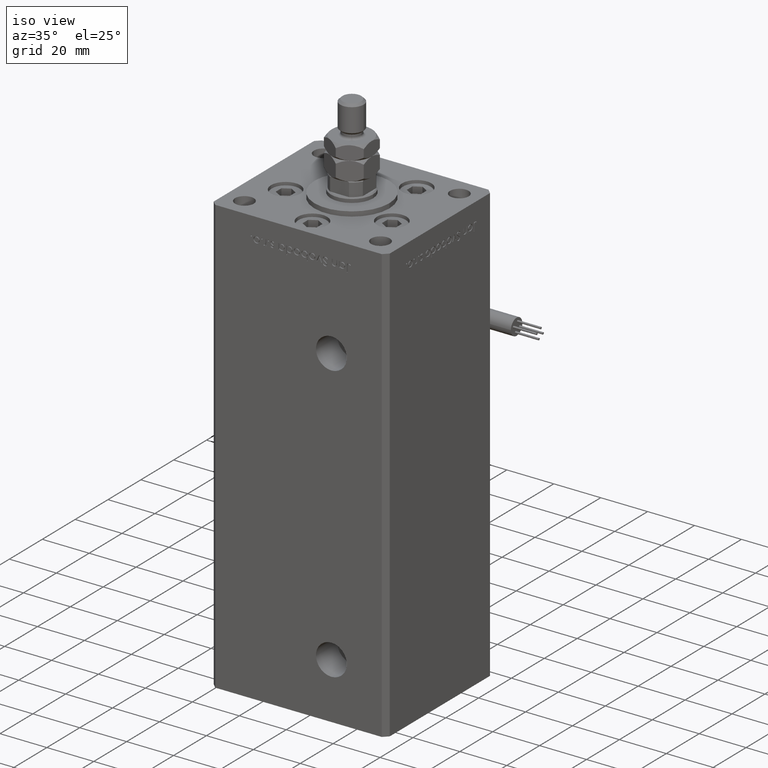
[diagram: clean part render]
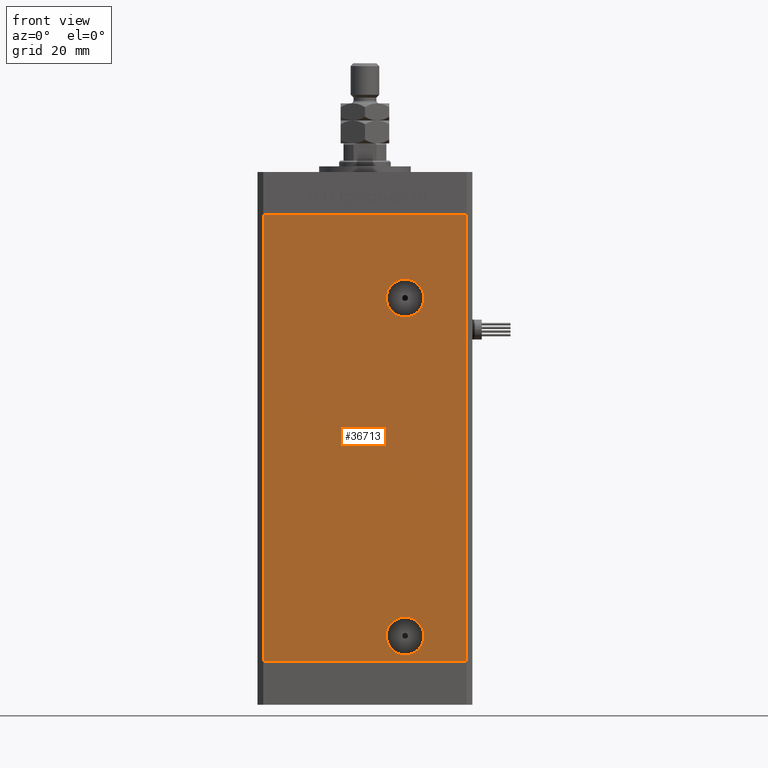
[diagram: tour spotlight — one face highlighted and labeled with its STEP entity id]
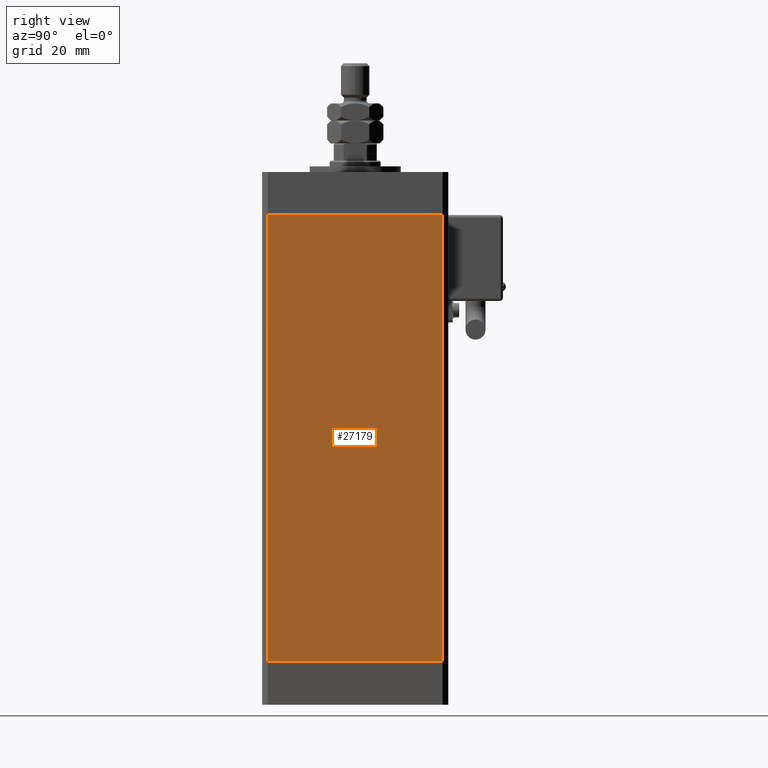
[diagram: tour spotlight — one face highlighted and labeled with its STEP entity id]
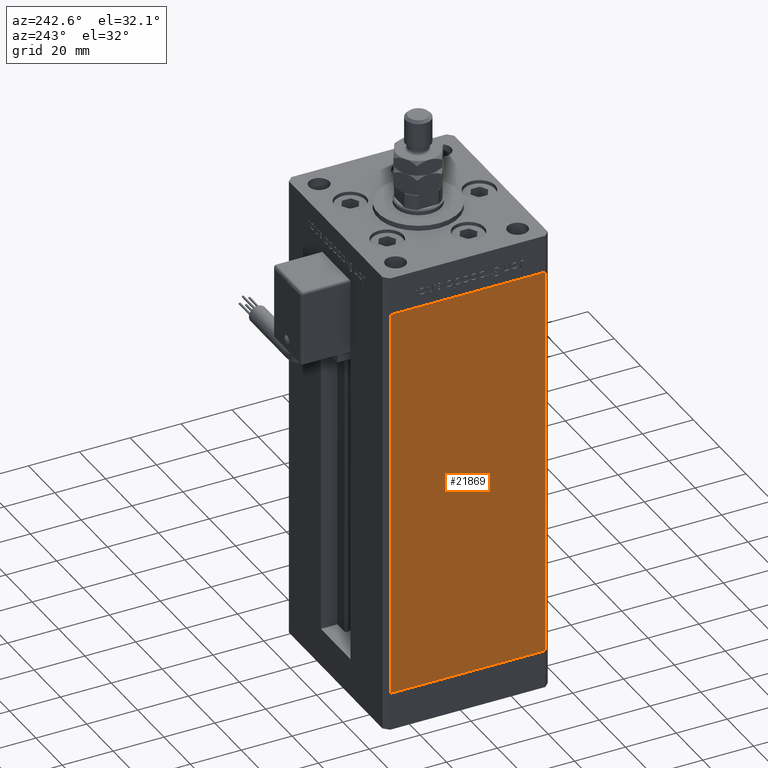
[diagram: tour spotlight — one face highlighted and labeled with its STEP entity id]
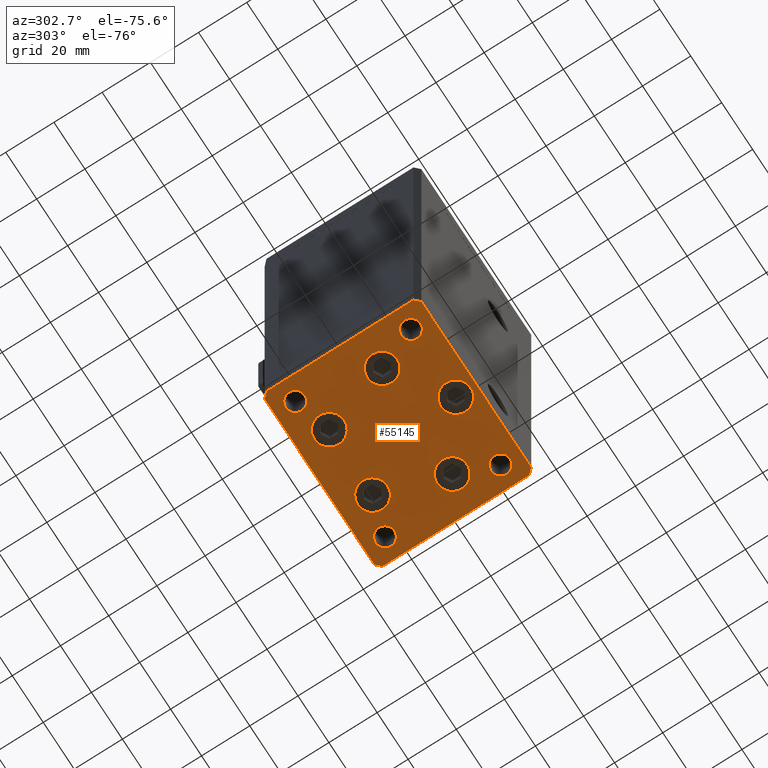
[diagram: tour spotlight — one face highlighted and labeled with its STEP entity id]
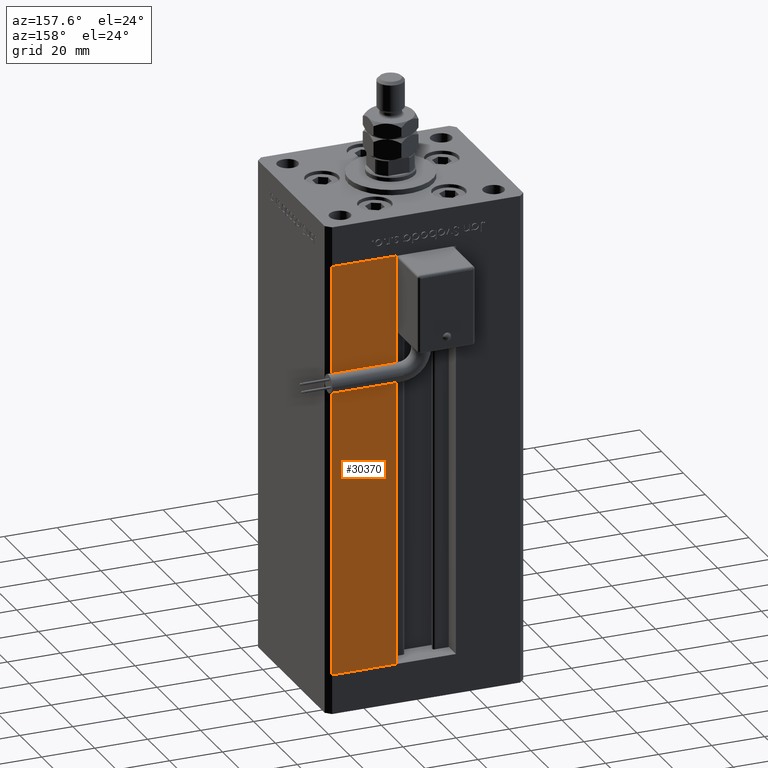
[diagram: tour spotlight — one face highlighted and labeled with its STEP entity id]
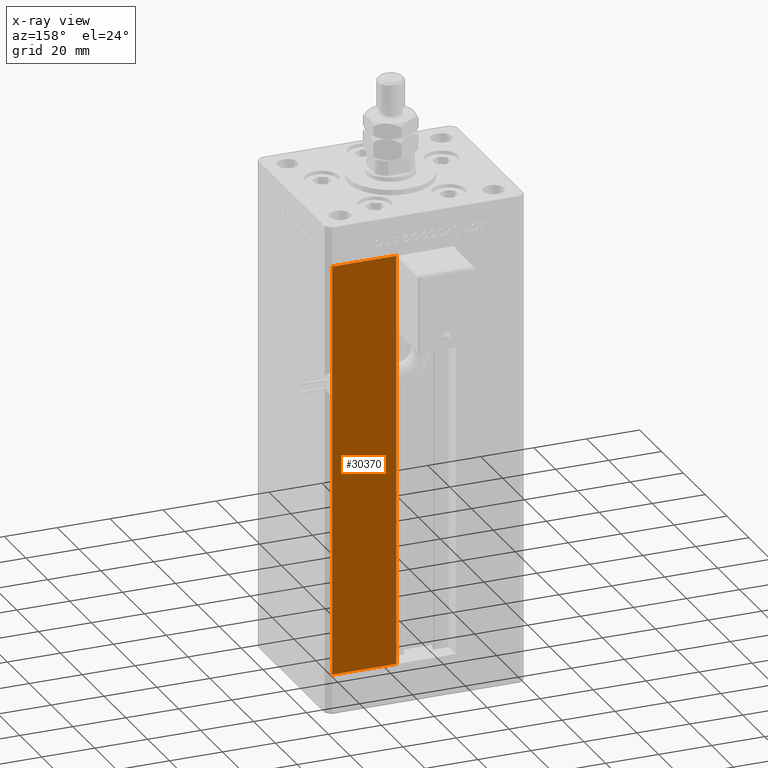
[diagram: x-ray of the same camera — body ghosted, this tour face saturated]
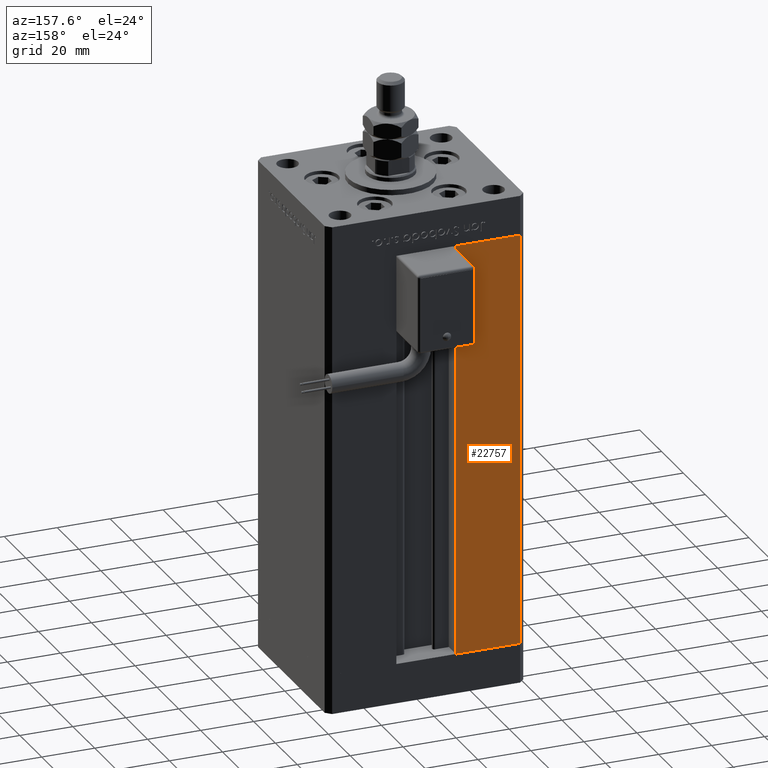
[diagram: tour spotlight — one face highlighted and labeled with its STEP entity id]
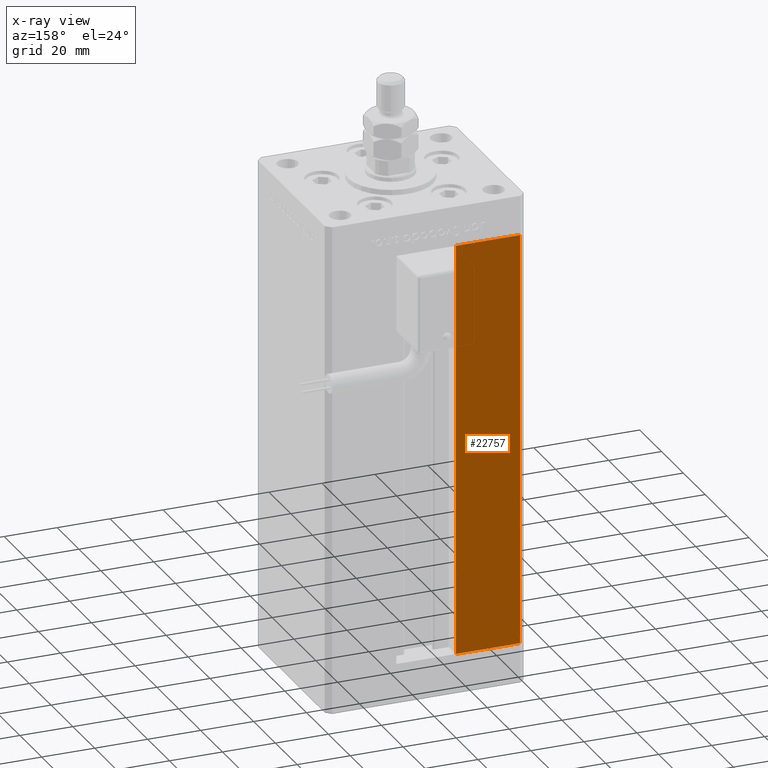
[diagram: x-ray of the same camera — body ghosted, this tour face saturated]
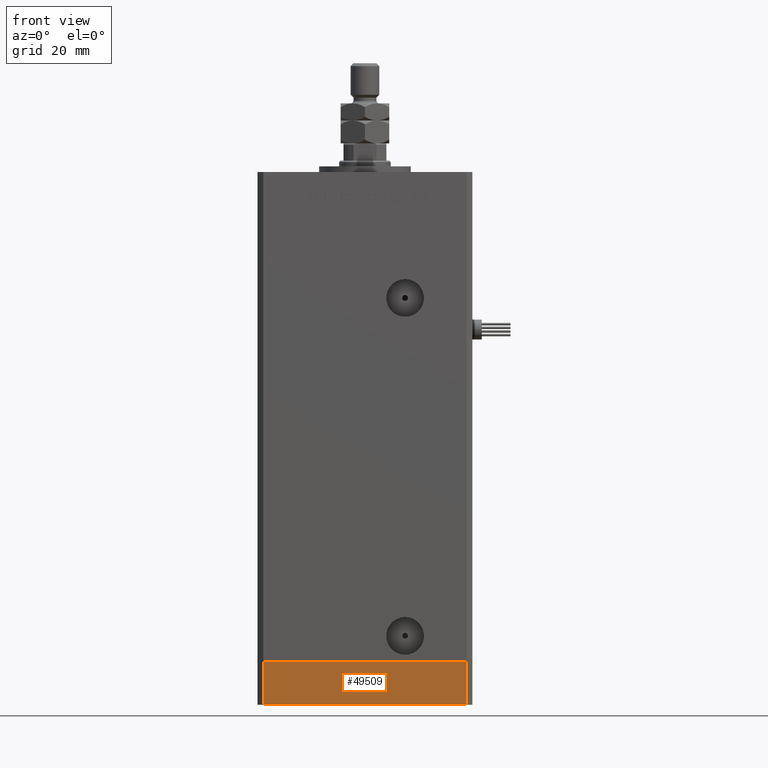
[diagram: tour spotlight — one face highlighted and labeled with its STEP entity id]
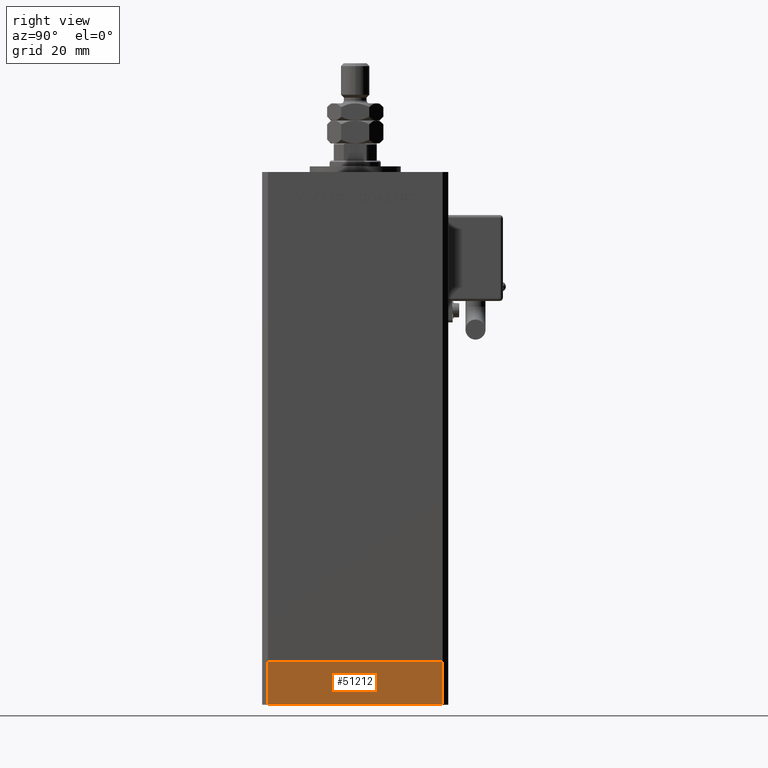
[diagram: tour spotlight — one face highlighted and labeled with its STEP entity id]
A machine part: a face-by-face anatomy tour. The part has 1334 B-rep faces; the first image is the clean iso view, then the 8 largest visible faces are spotlighted one at a time (largest first), each with its STEP entity span.

Face 1 — front view, entity #36713. In plain terms, the highlighted planar face has unit normal (0, 1, 0).
Definition (entity closure, byte-faithful):
#29 = CARTESIAN_POINT ( 'NONE',  ( -35.49999999999999289, -32.50000000000000000, 156.0000000000000000 ) ) ;
#680 = VERTEX_POINT ( 'NONE', #1004 ) ;
#1004 = CARTESIAN_POINT ( 'NONE',  ( 35.49999999999999289, -32.50000000000000000, 156.0000000000000000 ) ) ;
#3487 = DIRECTION ( 'NONE',  ( 0.000000000000000000, 0.000000000000000000, -1.000000000000000000 ) ) ;
#3886 = CARTESIAN_POINT ( 'NONE',  ( 13.99999999999999112, -32.50000000000000000, 127.0000000000000000 ) ) ;
#4958 = ORIENTED_EDGE ( 'NONE', *, *, #25438, .T. ) ;
#5842 = DIRECTION ( 'NONE',  ( 0.000000000000000000, -0.000000000000000000, 1.000000000000000000 ) ) ;
#6394 = EDGE_LOOP ( 'NONE', ( #26266, #25961, #50852, #46920 ) ) ;
#7010 = CIRCLE ( 'NONE', #26270, 6.579999999999998295 ) ;
#7611 = CIRCLE ( 'NONE', #43324, 6.580000000000002736 ) ;
#7726 = DIRECTION ( 'NONE',  ( -0.000000000000000000, -0.000000000000000000, -1.000000000000000000 ) ) ;
#8757 = FACE_BOUND ( 'NONE', #54444, .T. ) ;
#10414 = VERTEX_POINT ( 'NONE', #15318 ) ;
#10875 = VERTEX_POINT ( 'NONE', #51227 ) ;
#11021 = LINE ( 'NONE', #41979, #26469 ) ;
#11876 = DIRECTION ( 'NONE',  ( 1.000000000000000000, 0.000000000000000000, 0.000000000000000000 ) ) ;
#13381 = VERTEX_POINT ( 'NONE', #18085 ) ;
#14303 = AXIS2_PLACEMENT_3D ( 'NONE', #29926, #37638, #16994 ) ;
#15027 = CARTESIAN_POINT ( 'NONE',  ( -35.49999999999999289, -32.50000000000000000, 156.0000000000000000 ) ) ;
#15318 = CARTESIAN_POINT ( 'NONE',  ( 13.99999999999999112, -32.50000000000000000, 2.420000000000009699 ) ) ;
#16994 = DIRECTION ( 'NONE',  ( 0.000000000000000000, 0.000000000000000000, -1.000000000000000000 ) ) ;
#17430 = EDGE_CURVE ( 'NONE', #10875, #21219, #18120, .T. ) ;
#18085 = CARTESIAN_POINT ( 'NONE',  ( -35.49999999999999289, -32.50000000000000000, 156.0000000000000000 ) ) ;
#18120 = LINE ( 'NONE', #22149, #34156 ) ;
#18753 = DIRECTION ( 'NONE',  ( 0.000000000000000000, 1.000000000000000000, 0.000000000000000000 ) ) ;
#19267 = EDGE_CURVE ( 'NONE', #21267, #53554, #7611, .T. ) ;
#20791 = EDGE_CURVE ( 'NONE', #13381, #10875, #39324, .T. ) ;
#20843 = CARTESIAN_POINT ( 'NONE',  ( 13.99999999999999112, -32.50000000000000000, 15.58000000000000718 ) ) ;
#21196 = AXIS2_PLACEMENT_3D ( 'NONE', #30744, #26435, #39888 ) ;
#21195 = CARTESIAN_POINT ( 'NONE',  ( 35.49999999999999289, -32.50000000000000000, 156.0000000000000000 ) ) ;
#21219 = VERTEX_POINT ( 'NONE', #54701 ) ;
#21267 = VERTEX_POINT ( 'NONE', #42065 ) ;
#22119 = DIRECTION ( 'NONE',  ( -0.000000000000000000, -0.000000000000000000, -1.000000000000000000 ) ) ;
#22149 = CARTESIAN_POINT ( 'NONE',  ( -35.49999999999999289, -32.50000000000000000, 0.000000000000000000 ) ) ;
#25438 = EDGE_CURVE ( 'NONE', #53554, #21267, #49559, .T. ) ;
#25961 = ORIENTED_EDGE ( 'NONE', *, *, #40855, .F. ) ;
#25991 = DIRECTION ( 'NONE',  ( -0.000000000000000000, 1.000000000000000000, -0.000000000000000000 ) ) ;
#26252 = FACE_OUTER_BOUND ( 'NONE', #6394, .T. ) ;
#26266 = ORIENTED_EDGE ( 'NONE', *, *, #17430, .T. ) ;
#26270 = AXIS2_PLACEMENT_3D ( 'NONE', #30185, #47104, #3487 ) ;
#26435 = DIRECTION ( 'NONE',  ( -0.000000000000000000, 1.000000000000000000, -0.000000000000000000 ) ) ;
#26469 = VECTOR ( 'NONE', #11876, 1000.000000000000000 ) ;
#27440 = EDGE_LOOP ( 'NONE', ( #4958, #52325 ) ) ;
#29926 = CARTESIAN_POINT ( 'NONE',  ( 13.99999999999999112, -32.50000000000000000, 9.000000000000007105 ) ) ;
#30185 = CARTESIAN_POINT ( 'NONE',  ( 13.99999999999999112, -32.50000000000000000, 9.000000000000007105 ) ) ;
#30744 = CARTESIAN_POINT ( 'NONE',  ( 13.99999999999999112, -32.50000000000000000, 127.0000000000000000 ) ) ;
#31513 = AXIS2_PLACEMENT_3D ( 'NONE', #15027, #18753, #5842 ) ;
#32048 = CARTESIAN_POINT ( 'NONE',  ( 13.99999999999999112, -32.50000000000000000, 120.4200000000000017 ) ) ;
#32236 = FACE_BOUND ( 'NONE', #27440, .T. ) ;
#34156 = VECTOR ( 'NONE', #39913, 1000.000000000000000 ) ;
#35127 = VECTOR ( 'NONE', #22119, 1000.000000000000000 ) ;
#36275 = CIRCLE ( 'NONE', #14303, 6.579999999999998295 ) ;
#36713 = ADVANCED_FACE ( 'NONE', ( #8757, #26252, #32236 ), #53463, .F. ) ;
#37638 = DIRECTION ( 'NONE',  ( 0.000000000000000000, -1.000000000000000000, 0.000000000000000000 ) ) ;
#39324 = LINE ( 'NONE', #29, #35127 ) ;
#39843 = VECTOR ( 'NONE', #7726, 1000.000000000000000 ) ;
#39888 = DIRECTION ( 'NONE',  ( 0.000000000000000000, 0.000000000000000000, -1.000000000000000000 ) ) ;
#39913 = DIRECTION ( 'NONE',  ( 1.000000000000000000, 0.000000000000000000, 0.000000000000000000 ) ) ;
#40855 = EDGE_CURVE ( 'NONE', #680, #21219, #51884, .T. ) ;
#41209 = VERTEX_POINT ( 'NONE', #20843 ) ;
#41979 = CARTESIAN_POINT ( 'NONE',  ( -35.49999999999999289, -32.50000000000000000, 156.0000000000000000 ) ) ;
#42065 = CARTESIAN_POINT ( 'NONE',  ( 13.99999999999999112, -32.50000000000000000, 133.5800000000000125 ) ) ;
#42652 = EDGE_CURVE ( 'NONE', #41209, #10414, #36275, .T. ) ;
#43324 = AXIS2_PLACEMENT_3D ( 'NONE', #3886, #25991, #43476 ) ;
#43403 = EDGE_CURVE ( 'NONE', #10414, #41209, #7010, .T. ) ;
#43476 = DIRECTION ( 'NONE',  ( 0.000000000000000000, 0.000000000000000000, -1.000000000000000000 ) ) ;
#46920 = ORIENTED_EDGE ( 'NONE', *, *, #20791, .T. ) ;
#47104 = DIRECTION ( 'NONE',  ( 0.000000000000000000, -1.000000000000000000, 0.000000000000000000 ) ) ;
#49559 = CIRCLE ( 'NONE', #21196, 6.580000000000002736 ) ;
#50852 = ORIENTED_EDGE ( 'NONE', *, *, #53798, .F. ) ;
#50985 = ORIENTED_EDGE ( 'NONE', *, *, #42652, .F. ) ;
#51227 = CARTESIAN_POINT ( 'NONE',  ( -35.49999999999999289, -32.50000000000000000, 0.000000000000000000 ) ) ;
#51884 = LINE ( 'NONE', #21195, #39843 ) ;
#52325 = ORIENTED_EDGE ( 'NONE', *, *, #19267, .T. ) ;
#53463 = PLANE ( 'NONE',  #31513 ) ;
#53554 = VERTEX_POINT ( 'NONE', #32048 ) ;
#53610 = ORIENTED_EDGE ( 'NONE', *, *, #43403, .F. ) ;
#53798 = EDGE_CURVE ( 'NONE', #13381, #680, #11021, .T. ) ;
#54444 = EDGE_LOOP ( 'NONE', ( #53610, #50985 ) ) ;
#54701 = CARTESIAN_POINT ( 'NONE',  ( 35.49999999999999289, -32.50000000000000000, 0.000000000000000000 ) ) ;

Face 2 — right view, entity #27179. In plain terms, the highlighted planar face has unit normal (1, -0, 0).
Definition (entity closure, byte-faithful):
#28 = LINE ( 'NONE', #44184, #8174 ) ;
#2118 = VECTOR ( 'NONE', #31522, 1000.000000000000000 ) ;
#5668 = EDGE_CURVE ( 'NONE', #36951, #15368, #28, .T. ) ;
#7523 = VERTEX_POINT ( 'NONE', #43932 ) ;
#8174 = VECTOR ( 'NONE', #39593, 1000.000000000000000 ) ;
#10170 = LINE ( 'NONE', #22813, #31454 ) ;
#11176 = DIRECTION ( 'NONE',  ( -2.275047181608927644E-16, -1.000000000000000000, 0.000000000000000000 ) ) ;
#11474 = CARTESIAN_POINT ( 'NONE',  ( 37.49999999999999289, -30.50000000000000000, 156.0000000000000000 ) ) ;
#13672 = ORIENTED_EDGE ( 'NONE', *, *, #15584, .F. ) ;
#14416 = DIRECTION ( 'NONE',  ( 1.000000000000000000, -2.275047181608927644E-16, 0.000000000000000000 ) ) ;
#15368 = VERTEX_POINT ( 'NONE', #42736 ) ;
#15584 = EDGE_CURVE ( 'NONE', #15368, #7523, #48719, .T. ) ;
#19283 = EDGE_CURVE ( 'NONE', #51040, #7523, #10170, .T. ) ;
#20590 = EDGE_LOOP ( 'NONE', ( #13672, #41916, #29432, #45214 ) ) ;
#22528 = DIRECTION ( 'NONE',  ( -0.000000000000000000, -0.000000000000000000, -1.000000000000000000 ) ) ;
#22813 = CARTESIAN_POINT ( 'NONE',  ( 37.49999999999999289, -30.50000000000000000, 156.0000000000000000 ) ) ;
#27179 = ADVANCED_FACE ( 'NONE', ( #32486 ), #28179, .T. ) ;
#27660 = AXIS2_PLACEMENT_3D ( 'NONE', #53996, #14416, #41079 ) ;
#28179 = PLANE ( 'NONE',  #27660 ) ;
#29432 = ORIENTED_EDGE ( 'NONE', *, *, #48231, .T. ) ;
#31055 = CARTESIAN_POINT ( 'NONE',  ( 37.50000000000000711, 30.50000000000000000, 156.0000000000000000 ) ) ;
#31454 = VECTOR ( 'NONE', #22528, 1000.000000000000000 ) ;
#31522 = DIRECTION ( 'NONE',  ( -2.275047181608927644E-16, -1.000000000000000000, 0.000000000000000000 ) ) ;
#31800 = CARTESIAN_POINT ( 'NONE',  ( 37.50000000000000711, 30.50000000000000000, 0.000000000000000000 ) ) ;
#32486 = FACE_OUTER_BOUND ( 'NONE', #20590, .T. ) ;
#36951 = VERTEX_POINT ( 'NONE', #31055 ) ;
#39593 = DIRECTION ( 'NONE',  ( -0.000000000000000000, -0.000000000000000000, -1.000000000000000000 ) ) ;
#41079 = DIRECTION ( 'NONE',  ( 2.275047181608927644E-16, 1.000000000000000000, 0.000000000000000000 ) ) ;
#41916 = ORIENTED_EDGE ( 'NONE', *, *, #5668, .F. ) ;
#42736 = CARTESIAN_POINT ( 'NONE',  ( 37.50000000000000711, 30.50000000000000000, 0.000000000000000000 ) ) ;
#42764 = VECTOR ( 'NONE', #11176, 1000.000000000000000 ) ;
#43932 = CARTESIAN_POINT ( 'NONE',  ( 37.49999999999999289, -30.50000000000000000, 0.000000000000000000 ) ) ;
#44184 = CARTESIAN_POINT ( 'NONE',  ( 37.50000000000000711, 30.50000000000000000, 156.0000000000000000 ) ) ;
#45214 = ORIENTED_EDGE ( 'NONE', *, *, #19283, .T. ) ;
#48231 = EDGE_CURVE ( 'NONE', #36951, #51040, #55054, .T. ) ;
#48719 = LINE ( 'NONE', #31800, #2118 ) ;
#50755 = CARTESIAN_POINT ( 'NONE',  ( 37.50000000000000711, 30.50000000000000000, 156.0000000000000000 ) ) ;
#51040 = VERTEX_POINT ( 'NONE', #11474 ) ;
#53996 = CARTESIAN_POINT ( 'NONE',  ( 37.50000000000000711, 30.50000000000000000, 156.0000000000000000 ) ) ;
#55054 = LINE ( 'NONE', #50755, #42764 ) ;

Face 3 — auxiliary view, entity #21869. In plain terms, the highlighted planar face has unit normal (1, 0, 0).
Definition (entity closure, byte-faithful):
#47 = VECTOR ( 'NONE', #56386, 1000.000000000000000 ) ;
#528 = LINE ( 'NONE', #5387, #1559 ) ;
#954 = CARTESIAN_POINT ( 'NONE',  ( -37.49999999999999289, -30.50000000000000000, 156.0000000000000000 ) ) ;
#1559 = VECTOR ( 'NONE', #22906, 1000.000000000000000 ) ;
#2048 = DIRECTION ( 'NONE',  ( -2.275047181608927644E-16, 1.000000000000000000, 0.000000000000000000 ) ) ;
#5387 = CARTESIAN_POINT ( 'NONE',  ( -37.50000000000000711, 30.50000000000000000, 156.0000000000000000 ) ) ;
#6260 = EDGE_CURVE ( 'NONE', #27449, #11131, #34830, .T. ) ;
#9301 = EDGE_CURVE ( 'NONE', #12128, #11131, #16808, .T. ) ;
#11131 = VERTEX_POINT ( 'NONE', #15610 ) ;
#12128 = VERTEX_POINT ( 'NONE', #954 ) ;
#13400 = EDGE_CURVE ( 'NONE', #31366, #27449, #40154, .T. ) ;
#14060 = CARTESIAN_POINT ( 'NONE',  ( -37.50000000000000711, 30.50000000000000000, 156.0000000000000000 ) ) ;
#15163 = ORIENTED_EDGE ( 'NONE', *, *, #6260, .T. ) ;
#15504 = CARTESIAN_POINT ( 'NONE',  ( -37.50000000000000711, 30.50000000000000000, 0.000000000000000000 ) ) ;
#15610 = CARTESIAN_POINT ( 'NONE',  ( -37.49999999999999289, -30.50000000000000000, 0.000000000000000000 ) ) ;
#16808 = LINE ( 'NONE', #38884, #47 ) ;
#18538 = VECTOR ( 'NONE', #22965, 1000.000000000000000 ) ;
#21590 = ORIENTED_EDGE ( 'NONE', *, *, #48473, .F. ) ;
#21869 = ADVANCED_FACE ( 'NONE', ( #49957 ), #46213, .F. ) ;
#22364 = AXIS2_PLACEMENT_3D ( 'NONE', #31899, #49385, #2048 ) ;
#22906 = DIRECTION ( 'NONE',  ( 2.275047181608927644E-16, -1.000000000000000000, 0.000000000000000000 ) ) ;
#22965 = DIRECTION ( 'NONE',  ( -0.000000000000000000, -0.000000000000000000, -1.000000000000000000 ) ) ;
#26036 = ORIENTED_EDGE ( 'NONE', *, *, #9301, .F. ) ;
#26308 = EDGE_LOOP ( 'NONE', ( #15163, #26036, #21590, #38927 ) ) ;
#27449 = VERTEX_POINT ( 'NONE', #15504 ) ;
#31366 = VERTEX_POINT ( 'NONE', #50389 ) ;
#31899 = CARTESIAN_POINT ( 'NONE',  ( -37.50000000000000711, 30.50000000000000000, 156.0000000000000000 ) ) ;
#34830 = LINE ( 'NONE', #38273, #47606 ) ;
#38273 = CARTESIAN_POINT ( 'NONE',  ( -37.50000000000000711, 30.50000000000000000, 0.000000000000000000 ) ) ;
#38884 = CARTESIAN_POINT ( 'NONE',  ( -37.49999999999999289, -30.50000000000000000, 156.0000000000000000 ) ) ;
#38927 = ORIENTED_EDGE ( 'NONE', *, *, #13400, .T. ) ;
#40154 = LINE ( 'NONE', #14060, #18538 ) ;
#46213 = PLANE ( 'NONE',  #22364 ) ;
#47606 = VECTOR ( 'NONE', #52313, 1000.000000000000000 ) ;
#48473 = EDGE_CURVE ( 'NONE', #31366, #12128, #528, .T. ) ;
#49385 = DIRECTION ( 'NONE',  ( 1.000000000000000000, 2.275047181608927644E-16, -0.000000000000000000 ) ) ;
#49957 = FACE_OUTER_BOUND ( 'NONE', #26308, .T. ) ;
#50389 = CARTESIAN_POINT ( 'NONE',  ( -37.50000000000000711, 30.50000000000000000, 156.0000000000000000 ) ) ;
#52313 = DIRECTION ( 'NONE',  ( 2.275047181608927644E-16, -1.000000000000000000, 0.000000000000000000 ) ) ;
#56386 = DIRECTION ( 'NONE',  ( -0.000000000000000000, -0.000000000000000000, -1.000000000000000000 ) ) ;

Face 4 — auxiliary view, entity #55145. In plain terms, the highlighted planar face has unit normal (0, 0, -1).
Definition (entity closure, byte-faithful):
#143 = LINE ( 'NONE', #13628, #7365 ) ;
#252 = DIRECTION ( 'NONE',  ( 1.000000000000000000, 0.000000000000000000, 0.000000000000000000 ) ) ;
#438 = VERTEX_POINT ( 'NONE', #41213 ) ;
#834 = ORIENTED_EDGE ( 'NONE', *, *, #24213, .T. ) ;
#1011 = DIRECTION ( 'NONE',  ( 1.000000000000000000, 0.000000000000000000, 0.000000000000000000 ) ) ;
#1098 = DIRECTION ( 'NONE',  ( -0.7071067811865482389, 0.7071067811865469066, 0.000000000000000000 ) ) ;
#1278 = AXIS2_PLACEMENT_3D ( 'NONE', #46491, #24418, #46201 ) ;
#1364 = AXIS2_PLACEMENT_3D ( 'NONE', #55210, #7317, #19662 ) ;
#1621 = ORIENTED_EDGE ( 'NONE', *, *, #23078, .T. ) ;
#1730 = EDGE_LOOP ( 'NONE', ( #16569, #14950 ) ) ;
#2017 = ORIENTED_EDGE ( 'NONE', *, *, #30275, .T. ) ;
#2320 = CARTESIAN_POINT ( 'NONE',  ( -25.00000000000001066, -23.99999999999999289, 0.000000000000000000 ) ) ;
#2460 = CARTESIAN_POINT ( 'NONE',  ( 20.24106857963322526, 19.50000000000000000, 0.000000000000000000 ) ) ;
#2658 = CIRCLE ( 'NONE', #35616, 3.999999999999996447 ) ;
#3376 = EDGE_LOOP ( 'NONE', ( #37290, #45844 ) ) ;
#4157 = DIRECTION ( 'NONE',  ( 0.000000000000000000, -0.000000000000000000, -1.000000000000000000 ) ) ;
#4168 = CIRCLE ( 'NONE', #13315, 4.000000000000003553 ) ;
#4673 = AXIS2_PLACEMENT_3D ( 'NONE', #35980, #31978, #9891 ) ;
#4676 = CARTESIAN_POINT ( 'NONE',  ( 35.49999999999992184, 32.50000000000000711, 0.000000000000000000 ) ) ;
#4829 = EDGE_CURVE ( 'NONE', #8698, #25823, #27414, .T. ) ;
#5012 = EDGE_CURVE ( 'NONE', #18595, #15035, #30033, .T. ) ;
#5412 = ORIENTED_EDGE ( 'NONE', *, *, #22615, .T. ) ;
#5915 = VERTEX_POINT ( 'NONE', #40731 ) ;
#6937 = ORIENTED_EDGE ( 'NONE', *, *, #5012, .T. ) ;
#7160 = DIRECTION ( 'NONE',  ( 1.000000000000000000, 0.000000000000000000, 0.000000000000000000 ) ) ;
#7167 = EDGE_CURVE ( 'NONE', #47227, #23776, #54440, .T. ) ;
#7317 = DIRECTION ( 'NONE',  ( 0.000000000000000000, -0.000000000000000000, -1.000000000000000000 ) ) ;
#7365 = VECTOR ( 'NONE', #47505, 1000.000000000000000 ) ;
#7694 = DIRECTION ( 'NONE',  ( 1.000000000000000000, 0.000000000000000000, 0.000000000000000000 ) ) ;
#7746 = AXIS2_PLACEMENT_3D ( 'NONE', #48834, #18705, #31909 ) ;
#7860 = DIRECTION ( 'NONE',  ( 0.000000000000000000, -0.000000000000000000, -1.000000000000000000 ) ) ;
#8415 = VECTOR ( 'NONE', #42934, 1000.000000000000000 ) ;
#8422 = EDGE_LOOP ( 'NONE', ( #17307, #54886 ) ) ;
#8509 = CARTESIAN_POINT ( 'NONE',  ( 29.00000000000001066, -23.99999999999999289, 0.000000000000000000 ) ) ;
#8640 = CARTESIAN_POINT ( 'NONE',  ( -16.37741699796951877, -8.000000000000005329, 0.000000000000000000 ) ) ;
#8698 = VERTEX_POINT ( 'NONE', #53405 ) ;
#8984 = EDGE_LOOP ( 'NONE', ( #15042, #24816 ) ) ;
#9156 = CARTESIAN_POINT ( 'NONE',  ( 2.939152317953647500E-15, -24.00000000000000000, 0.000000000000000000 ) ) ;
#9399 = EDGE_CURVE ( 'NONE', #15035, #438, #143, .T. ) ;
#9493 = VERTEX_POINT ( 'NONE', #28238 ) ;
#9518 = CIRCLE ( 'NONE', #1278, 3.999999999999996447 ) ;
#9540 = DIRECTION ( 'NONE',  ( 1.000000000000000000, 9.773090005503140331E-17, 0.000000000000000000 ) ) ;
#9891 = DIRECTION ( 'NONE',  ( 1.000000000000000000, 0.000000000000000000, 0.000000000000000000 ) ) ;
#10979 = EDGE_CURVE ( 'NONE', #15575, #45705, #16585, .T. ) ;
#11378 = CARTESIAN_POINT ( 'NONE',  ( 16.37741699796951877, -8.000000000000000000, 0.000000000000000000 ) ) ;
#11841 = CARTESIAN_POINT ( 'NONE',  ( -7.741068579633227031, 19.49999999999999645, 0.000000000000000000 ) ) ;
#11937 = CARTESIAN_POINT ( 'NONE',  ( -35.49999999999998579, -32.50000000000001421, 0.000000000000000000 ) ) ;
#12342 = ORIENTED_EDGE ( 'NONE', *, *, #36689, .T. ) ;
#12539 = CARTESIAN_POINT ( 'NONE',  ( 37.50000000000001421, -30.50000000000000711, 0.000000000000000000 ) ) ;
#12840 = FACE_BOUND ( 'NONE', #47696, .T. ) ;
#12864 = CARTESIAN_POINT ( 'NONE',  ( -29.00000000000001066, 24.00000000000000711, 0.000000000000000000 ) ) ;
#12880 = EDGE_CURVE ( 'NONE', #25823, #47227, #20269, .T. ) ;
#13102 = CIRCLE ( 'NONE', #22284, 6.250000000000000000 ) ;
#13161 = CARTESIAN_POINT ( 'NONE',  ( -33.00000000000000711, 24.00000000000000711, 0.000000000000000000 ) ) ;
#13315 = AXIS2_PLACEMENT_3D ( 'NONE', #8509, #26008, #44330 ) ;
#13628 = CARTESIAN_POINT ( 'NONE',  ( -37.50000000000001421, 30.49999999999998579, 0.000000000000000000 ) ) ;
#13898 = CIRCLE ( 'NONE', #45959, 6.250000000000001776 ) ;
#14950 = ORIENTED_EDGE ( 'NONE', *, *, #46569, .T. ) ;
#15035 = VERTEX_POINT ( 'NONE', #29921 ) ;
#15042 = ORIENTED_EDGE ( 'NONE', *, *, #43437, .T. ) ;
#15225 = CARTESIAN_POINT ( 'NONE',  ( 22.62741699796951877, -8.000000000000000000, 0.000000000000000000 ) ) ;
#15575 = VERTEX_POINT ( 'NONE', #31238 ) ;
#15695 = CARTESIAN_POINT ( 'NONE',  ( -37.49999999999998579, -30.50000000000001421, 0.000000000000000000 ) ) ;
#15853 = ORIENTED_EDGE ( 'NONE', *, *, #12880, .T. ) ;
#15864 = AXIS2_PLACEMENT_3D ( 'NONE', #35436, #48628, #55609 ) ;
#15982 = DIRECTION ( 'NONE',  ( -0.000000000000000000, 0.000000000000000000, 1.000000000000000000 ) ) ;
#16139 = CARTESIAN_POINT ( 'NONE',  ( 33.00000000000001421, -23.99999999999999289, 0.000000000000000000 ) ) ;
#16177 = CIRCLE ( 'NONE', #50036, 4.000000000000000000 ) ;
#16569 = ORIENTED_EDGE ( 'NONE', *, *, #55050, .T. ) ;
#16585 = CIRCLE ( 'NONE', #4673, 6.250000000000000000 ) ;
#16846 = VERTEX_POINT ( 'NONE', #23773 ) ;
#17307 = ORIENTED_EDGE ( 'NONE', *, *, #19714, .F. ) ;
#17315 = CARTESIAN_POINT ( 'NONE',  ( 13.99106857963322348, 19.50000000000000000, 0.000000000000000000 ) ) ;
#18595 = VERTEX_POINT ( 'NONE', #23221 ) ;
#18705 = DIRECTION ( 'NONE',  ( 0.000000000000000000, -0.000000000000000000, -1.000000000000000000 ) ) ;
#18960 = AXIS2_PLACEMENT_3D ( 'NONE', #37280, #41865, #7160 ) ;
#19247 = VERTEX_POINT ( 'NONE', #11937 ) ;
#19345 = CARTESIAN_POINT ( 'NONE',  ( 13.99106857963322348, 19.50000000000000000, 0.000000000000000000 ) ) ;
#19465 = EDGE_CURVE ( 'NONE', #37583, #9493, #13102, .T. ) ;
#19583 = CIRCLE ( 'NONE', #37887, 6.250000000000000000 ) ;
#19662 = DIRECTION ( 'NONE',  ( 1.000000000000000000, 0.000000000000000000, 0.000000000000000000 ) ) ;
#19714 = EDGE_CURVE ( 'NONE', #35609, #47153, #45151, .T. ) ;
#19812 = ORIENTED_EDGE ( 'NONE', *, *, #9399, .T. ) ;
#20269 = LINE ( 'NONE', #12539, #8415 ) ;
#20368 = CARTESIAN_POINT ( 'NONE',  ( 6.250000000000002665, -24.00000000000000000, 0.000000000000000000 ) ) ;
#20422 = AXIS2_PLACEMENT_3D ( 'NONE', #43343, #20984, #25580 ) ;
#20592 = FACE_BOUND ( 'NONE', #8984, .T. ) ;
#20954 = CARTESIAN_POINT ( 'NONE',  ( -25.00000000000001421, 24.00000000000000711, 0.000000000000000000 ) ) ;
#20984 = DIRECTION ( 'NONE',  ( -0.000000000000000000, 0.000000000000000000, 1.000000000000000000 ) ) ;
#21166 = FACE_BOUND ( 'NONE', #44505, .T. ) ;
#21181 = CARTESIAN_POINT ( 'NONE',  ( -29.00000000000001066, -23.99999999999999289, 0.000000000000000000 ) ) ;
#21478 = DIRECTION ( 'NONE',  ( 1.000000000000000000, 0.000000000000000000, 0.000000000000000000 ) ) ;
#21685 = CARTESIAN_POINT ( 'NONE',  ( 33.00000000000001421, 24.00000000000000711, 0.000000000000000000 ) ) ;
#22284 = AXIS2_PLACEMENT_3D ( 'NONE', #17315, #7860, #25364 ) ;
#22417 = ORIENTED_EDGE ( 'NONE', *, *, #7167, .T. ) ;
#22603 = EDGE_CURVE ( 'NONE', #5915, #45779, #32478, .T. ) ;
#22615 = EDGE_CURVE ( 'NONE', #19247, #8698, #36193, .T. ) ;
#22832 = DIRECTION ( 'NONE',  ( 0.000000000000000000, -0.000000000000000000, -1.000000000000000000 ) ) ;
#22853 = VERTEX_POINT ( 'NONE', #8640 ) ;
#23078 = EDGE_CURVE ( 'NONE', #49227, #16846, #30686, .T. ) ;
#23221 = CARTESIAN_POINT ( 'NONE',  ( -35.50000000000002842, 32.49999999999999289, 0.000000000000000000 ) ) ;
#23664 = ORIENTED_EDGE ( 'NONE', *, *, #39227, .T. ) ;
#23773 = CARTESIAN_POINT ( 'NONE',  ( 28.87741699796952233, -8.000000000000000000, 0.000000000000000000 ) ) ;
#23776 = VERTEX_POINT ( 'NONE', #35571 ) ;
#23832 = ORIENTED_EDGE ( 'NONE', *, *, #51425, .T. ) ;
#24041 = VERTEX_POINT ( 'NONE', #13161 ) ;
#24213 = EDGE_CURVE ( 'NONE', #45779, #5915, #4168, .T. ) ;
#24325 = DIRECTION ( 'NONE',  ( 1.000000000000000000, 0.000000000000000000, 0.000000000000000000 ) ) ;
#24362 = CARTESIAN_POINT ( 'NONE',  ( -33.00000000000000711, -23.99999999999999289, 0.000000000000000000 ) ) ;
#24418 = DIRECTION ( 'NONE',  ( -0.000000000000000000, 0.000000000000000000, 1.000000000000000000 ) ) ;
#24816 = ORIENTED_EDGE ( 'NONE', *, *, #19465, .T. ) ;
#25364 = DIRECTION ( 'NONE',  ( 1.000000000000000000, 0.000000000000000000, 0.000000000000000000 ) ) ;
#25580 = DIRECTION ( 'NONE',  ( 1.000000000000000000, 0.000000000000000000, 0.000000000000000000 ) ) ;
#25762 = CARTESIAN_POINT ( 'NONE',  ( 0.000000000000000000, 0.000000000000000000, 0.000000000000000000 ) ) ;
#25783 = CARTESIAN_POINT ( 'NONE',  ( 22.62741699796951877, -8.000000000000000000, 0.000000000000000000 ) ) ;
#25823 = VERTEX_POINT ( 'NONE', #32070 ) ;
#25904 = CARTESIAN_POINT ( 'NONE',  ( -6.249999999999997335, -24.00000000000000000, 0.000000000000000000 ) ) ;
#26008 = DIRECTION ( 'NONE',  ( 0.000000000000000000, -0.000000000000000000, -1.000000000000000000 ) ) ;
#26067 = DIRECTION ( 'NONE',  ( -0.000000000000000000, 0.000000000000000000, 1.000000000000000000 ) ) ;
#26098 = DIRECTION ( 'NONE',  ( 0.000000000000000000, -0.000000000000000000, -1.000000000000000000 ) ) ;
#27167 = ORIENTED_EDGE ( 'NONE', *, *, #22603, .T. ) ;
#27414 = LINE ( 'NONE', #53503, #40167 ) ;
#27508 = EDGE_CURVE ( 'NONE', #16846, #49227, #13898, .T. ) ;
#28238 = CARTESIAN_POINT ( 'NONE',  ( 7.741068579633223479, 19.50000000000000000, 0.000000000000000000 ) ) ;
#29154 = VERTEX_POINT ( 'NONE', #20954 ) ;
#29222 = FACE_BOUND ( 'NONE', #8422, .T. ) ;
#29502 = FACE_BOUND ( 'NONE', #3376, .T. ) ;
#29521 = DIRECTION ( 'NONE',  ( 0.000000000000000000, -0.000000000000000000, -1.000000000000000000 ) ) ;
#29798 = FACE_OUTER_BOUND ( 'NONE', #34411, .T. ) ;
#29921 = CARTESIAN_POINT ( 'NONE',  ( -37.50000000000001421, 30.49999999999998579, 0.000000000000000000 ) ) ;
#30033 = LINE ( 'NONE', #30591, #33790 ) ;
#30275 = EDGE_CURVE ( 'NONE', #55563, #22853, #43349, .T. ) ;
#30576 = ORIENTED_EDGE ( 'NONE', *, *, #27508, .T. ) ;
#30591 = CARTESIAN_POINT ( 'NONE',  ( -35.50000000000002842, 32.49999999999999289, 0.000000000000000000 ) ) ;
#30686 = CIRCLE ( 'NONE', #38934, 6.250000000000001776 ) ;
#31101 = CIRCLE ( 'NONE', #31131, 4.000000000000000000 ) ;
#31131 = AXIS2_PLACEMENT_3D ( 'NONE', #34363, #56440, #51854 ) ;
#31238 = CARTESIAN_POINT ( 'NONE',  ( -20.24106857963322881, 19.49999999999999645, 0.000000000000000000 ) ) ;
#31909 = DIRECTION ( 'NONE',  ( 1.000000000000000000, 0.000000000000000000, 0.000000000000000000 ) ) ;
#31978 = DIRECTION ( 'NONE',  ( 0.000000000000000000, -0.000000000000000000, -1.000000000000000000 ) ) ;
#32070 = CARTESIAN_POINT ( 'NONE',  ( 37.50000000000001421, -30.50000000000000711, 0.000000000000000000 ) ) ;
#32201 = EDGE_CURVE ( 'NONE', #47153, #35609, #56074, .T. ) ;
#32377 = EDGE_LOOP ( 'NONE', ( #2017, #23664 ) ) ;
#32478 = CIRCLE ( 'NONE', #7746, 4.000000000000003553 ) ;
#32643 = CARTESIAN_POINT ( 'NONE',  ( 37.49999999999992184, 30.50000000000001066, 0.000000000000000000 ) ) ;
#32667 = ORIENTED_EDGE ( 'NONE', *, *, #48260, .T. ) ;
#32869 = VERTEX_POINT ( 'NONE', #20368 ) ;
#33282 = DIRECTION ( 'NONE',  ( 0.000000000000000000, -0.000000000000000000, -1.000000000000000000 ) ) ;
#33790 = VECTOR ( 'NONE', #55821, 1000.000000000000000 ) ;
#33846 = VERTEX_POINT ( 'NONE', #2320 ) ;
#34363 = CARTESIAN_POINT ( 'NONE',  ( -29.00000000000001066, -23.99999999999999289, 0.000000000000000000 ) ) ;
#34411 = EDGE_LOOP ( 'NONE', ( #23832, #5412, #38423, #15853, #22417, #51710, #6937, #19812 ) ) ;
#34535 = LINE ( 'NONE', #4676, #38125 ) ;
#34924 = VERTEX_POINT ( 'NONE', #24362 ) ;
#35422 = CIRCLE ( 'NONE', #42767, 6.250000000000000000 ) ;
#35436 = CARTESIAN_POINT ( 'NONE',  ( -22.62741699796951877, -8.000000000000005329, 0.000000000000000000 ) ) ;
#35571 = CARTESIAN_POINT ( 'NONE',  ( 35.49999999999992184, 32.50000000000000711, 0.000000000000000000 ) ) ;
#35609 = VERTEX_POINT ( 'NONE', #21685 ) ;
#35616 = AXIS2_PLACEMENT_3D ( 'NONE', #12864, #26067, #21478 ) ;
#35980 = CARTESIAN_POINT ( 'NONE',  ( -13.99106857963322703, 19.49999999999999645, 0.000000000000000000 ) ) ;
#36193 = LINE ( 'NONE', #39941, #39783 ) ;
#36689 = EDGE_CURVE ( 'NONE', #32869, #36957, #19583, .T. ) ;
#36957 = VERTEX_POINT ( 'NONE', #25904 ) ;
#37033 = EDGE_LOOP ( 'NONE', ( #53302, #12342 ) ) ;
#37165 = EDGE_CURVE ( 'NONE', #29154, #24041, #9518, .T. ) ;
#37280 = CARTESIAN_POINT ( 'NONE',  ( -13.99106857963322703, 19.49999999999999645, 0.000000000000000000 ) ) ;
#37290 = ORIENTED_EDGE ( 'NONE', *, *, #37165, .F. ) ;
#37493 = DIRECTION ( 'NONE',  ( 0.7071067811865474617, -0.7071067811865474617, 0.000000000000000000 ) ) ;
#37583 = VERTEX_POINT ( 'NONE', #2460 ) ;
#37800 = FACE_BOUND ( 'NONE', #32377, .T. ) ;
#37887 = AXIS2_PLACEMENT_3D ( 'NONE', #43460, #4157, #48047 ) ;
#37899 = CARTESIAN_POINT ( 'NONE',  ( 25.00000000000000711, 24.00000000000000711, 0.000000000000000000 ) ) ;
#38125 = VECTOR ( 'NONE', #39658, 1000.000000000000000 ) ;
#38375 = PLANE ( 'NONE',  #51263 ) ;
#38423 = ORIENTED_EDGE ( 'NONE', *, *, #4829, .T. ) ;
#38477 = CARTESIAN_POINT ( 'NONE',  ( 37.49999999999992184, 30.50000000000001066, 0.000000000000000000 ) ) ;
#38658 = FACE_BOUND ( 'NONE', #44711, .T. ) ;
#38934 = AXIS2_PLACEMENT_3D ( 'NONE', #25783, #29521, #47302 ) ;
#39113 = CIRCLE ( 'NONE', #18960, 6.250000000000000000 ) ;
#39227 = EDGE_CURVE ( 'NONE', #22853, #55563, #48981, .T. ) ;
#39658 = DIRECTION ( 'NONE',  ( -1.000000000000000000, -1.954618001100629052E-16, 0.000000000000000000 ) ) ;
#39783 = VECTOR ( 'NONE', #9540, 1000.000000000000000 ) ;
#39941 = CARTESIAN_POINT ( 'NONE',  ( -35.49999999999998579, -32.50000000000001421, 0.000000000000000000 ) ) ;
#40167 = VECTOR ( 'NONE', #44903, 1000.000000000000000 ) ;
#40731 = CARTESIAN_POINT ( 'NONE',  ( 25.00000000000000711, -23.99999999999999289, 0.000000000000000000 ) ) ;
#41213 = CARTESIAN_POINT ( 'NONE',  ( -37.49999999999998579, -30.50000000000001421, 0.000000000000000000 ) ) ;
#41865 = DIRECTION ( 'NONE',  ( 0.000000000000000000, -0.000000000000000000, -1.000000000000000000 ) ) ;
#42359 = LINE ( 'NONE', #15695, #52976 ) ;
#42767 = AXIS2_PLACEMENT_3D ( 'NONE', #19345, #22832, #1011 ) ;
#42934 = DIRECTION ( 'NONE',  ( -1.478780668045802821E-15, 1.000000000000000000, 0.000000000000000000 ) ) ;
#43343 = CARTESIAN_POINT ( 'NONE',  ( 29.00000000000001066, 24.00000000000000711, 0.000000000000000000 ) ) ;
#43349 = CIRCLE ( 'NONE', #15864, 6.250000000000001776 ) ;
#43437 = EDGE_CURVE ( 'NONE', #9493, #37583, #35422, .T. ) ;
#43460 = CARTESIAN_POINT ( 'NONE',  ( 2.939152317953647500E-15, -24.00000000000000000, 0.000000000000000000 ) ) ;
#43708 = AXIS2_PLACEMENT_3D ( 'NONE', #9156, #26098, #252 ) ;
#44330 = DIRECTION ( 'NONE',  ( 1.000000000000000000, 0.000000000000000000, 0.000000000000000000 ) ) ;
#44505 = EDGE_LOOP ( 'NONE', ( #45218, #32667 ) ) ;
#44594 = CIRCLE ( 'NONE', #43708, 6.250000000000000000 ) ;
#44711 = EDGE_LOOP ( 'NONE', ( #1621, #30576 ) ) ;
#44903 = DIRECTION ( 'NONE',  ( 0.7071067811865487940, 0.7071067811865463515, 0.000000000000000000 ) ) ;
#45141 = EDGE_CURVE ( 'NONE', #36957, #32869, #44594, .T. ) ;
#45151 = CIRCLE ( 'NONE', #20422, 4.000000000000003553 ) ;
#45218 = ORIENTED_EDGE ( 'NONE', *, *, #10979, .T. ) ;
#45705 = VERTEX_POINT ( 'NONE', #11841 ) ;
#45779 = VERTEX_POINT ( 'NONE', #16139 ) ;
#45844 = ORIENTED_EDGE ( 'NONE', *, *, #54241, .F. ) ;
#45959 = AXIS2_PLACEMENT_3D ( 'NONE', #15225, #33282, #51048 ) ;
#45991 = AXIS2_PLACEMENT_3D ( 'NONE', #55272, #15982, #24325 ) ;
#46201 = DIRECTION ( 'NONE',  ( 1.000000000000000000, 0.000000000000000000, 0.000000000000000000 ) ) ;
#46491 = CARTESIAN_POINT ( 'NONE',  ( -29.00000000000001066, 24.00000000000000711, 0.000000000000000000 ) ) ;
#46569 = EDGE_CURVE ( 'NONE', #34924, #33846, #16177, .T. ) ;
#46934 = EDGE_CURVE ( 'NONE', #23776, #18595, #34535, .T. ) ;
#46997 = DIRECTION ( 'NONE',  ( -0.000000000000000000, 0.000000000000000000, 1.000000000000000000 ) ) ;
#47153 = VERTEX_POINT ( 'NONE', #37899 ) ;
#47227 = VERTEX_POINT ( 'NONE', #38477 ) ;
#47302 = DIRECTION ( 'NONE',  ( 1.000000000000000000, 0.000000000000000000, 0.000000000000000000 ) ) ;
#47505 = DIRECTION ( 'NONE',  ( 4.550094363217855288E-16, -1.000000000000000000, 0.000000000000000000 ) ) ;
#47579 = DIRECTION ( 'NONE',  ( 1.000000000000000000, 0.000000000000000000, 0.000000000000000000 ) ) ;
#47696 = EDGE_LOOP ( 'NONE', ( #834, #27167 ) ) ;
#48047 = DIRECTION ( 'NONE',  ( 1.000000000000000000, 0.000000000000000000, 0.000000000000000000 ) ) ;
#48260 = EDGE_CURVE ( 'NONE', #45705, #15575, #39113, .T. ) ;
#48628 = DIRECTION ( 'NONE',  ( 0.000000000000000000, -0.000000000000000000, -1.000000000000000000 ) ) ;
#48834 = CARTESIAN_POINT ( 'NONE',  ( 29.00000000000001066, -23.99999999999999289, 0.000000000000000000 ) ) ;
#48981 = CIRCLE ( 'NONE', #1364, 6.250000000000001776 ) ;
#49227 = VERTEX_POINT ( 'NONE', #11378 ) ;
#50036 = AXIS2_PLACEMENT_3D ( 'NONE', #21181, #51870, #47579 ) ;
#51048 = DIRECTION ( 'NONE',  ( 1.000000000000000000, 0.000000000000000000, 0.000000000000000000 ) ) ;
#51263 = AXIS2_PLACEMENT_3D ( 'NONE', #25762, #46997, #7694 ) ;
#51268 = VECTOR ( 'NONE', #1098, 999.9999999999998863 ) ;
#51425 = EDGE_CURVE ( 'NONE', #438, #19247, #42359, .T. ) ;
#51710 = ORIENTED_EDGE ( 'NONE', *, *, #46934, .T. ) ;
#51854 = DIRECTION ( 'NONE',  ( 1.000000000000000000, 0.000000000000000000, 0.000000000000000000 ) ) ;
#51870 = DIRECTION ( 'NONE',  ( 0.000000000000000000, -0.000000000000000000, -1.000000000000000000 ) ) ;
#52129 = FACE_BOUND ( 'NONE', #37033, .T. ) ;
#52976 = VECTOR ( 'NONE', #37493, 1000.000000000000114 ) ;
#53302 = ORIENTED_EDGE ( 'NONE', *, *, #45141, .T. ) ;
#53405 = CARTESIAN_POINT ( 'NONE',  ( 35.50000000000000711, -32.50000000000000711, 0.000000000000000000 ) ) ;
#53503 = CARTESIAN_POINT ( 'NONE',  ( 35.50000000000000711, -32.50000000000000711, 0.000000000000000000 ) ) ;
#54241 = EDGE_CURVE ( 'NONE', #24041, #29154, #2658, .T. ) ;
#54260 = CARTESIAN_POINT ( 'NONE',  ( -28.87741699796952233, -8.000000000000005329, 0.000000000000000000 ) ) ;
#54440 = LINE ( 'NONE', #32643, #51268 ) ;
#54886 = ORIENTED_EDGE ( 'NONE', *, *, #32201, .F. ) ;
#55050 = EDGE_CURVE ( 'NONE', #33846, #34924, #31101, .T. ) ;
#55145 = ADVANCED_FACE ( 'NONE', ( #21166, #20592, #38658, #52129, #37800, #29222, #12840, #29502, #29798, #56155 ), #38375, .T. ) ;
#55210 = CARTESIAN_POINT ( 'NONE',  ( -22.62741699796951877, -8.000000000000005329, 0.000000000000000000 ) ) ;
#55272 = CARTESIAN_POINT ( 'NONE',  ( 29.00000000000001066, 24.00000000000000711, 0.000000000000000000 ) ) ;
#55563 = VERTEX_POINT ( 'NONE', #54260 ) ;
#55609 = DIRECTION ( 'NONE',  ( 1.000000000000000000, 0.000000000000000000, 0.000000000000000000 ) ) ;
#55821 = DIRECTION ( 'NONE',  ( -0.7071067811865426878, -0.7071067811865524577, 0.000000000000000000 ) ) ;
#56074 = CIRCLE ( 'NONE', #45991, 4.000000000000003553 ) ;
#56155 = FACE_BOUND ( 'NONE', #1730, .T. ) ;
#56440 = DIRECTION ( 'NONE',  ( 0.000000000000000000, -0.000000000000000000, -1.000000000000000000 ) ) ;

Face 5 — auxiliary view, entity #30370. An x-ray twin of the same camera follows (body ghosted, this face saturated) — the face is partly hidden behind the body. In plain terms, the highlighted planar face has unit normal (0, -1, 0).
Definition (entity closure, byte-faithful):
#1132 = EDGE_CURVE ( 'NONE', #24878, #41737, #16038, .T. ) ;
#5324 = LINE ( 'NONE', #36007, #6971 ) ;
#5587 = DIRECTION ( 'NONE',  ( 0.000000000000000000, -1.000000000000000000, 0.000000000000000000 ) ) ;
#5876 = FACE_OUTER_BOUND ( 'NONE', #23618, .T. ) ;
#6745 = DIRECTION ( 'NONE',  ( -0.000000000000000000, -0.000000000000000000, 1.000000000000000000 ) ) ;
#6971 = VECTOR ( 'NONE', #6745, 1000.000000000000000 ) ;
#7702 = VECTOR ( 'NONE', #16146, 1000.000000000000000 ) ;
#9201 = ORIENTED_EDGE ( 'NONE', *, *, #17358, .T. ) ;
#10074 = VERTEX_POINT ( 'NONE', #28593 ) ;
#10475 = DIRECTION ( 'NONE',  ( 0.000000000000000000, -0.000000000000000000, -1.000000000000000000 ) ) ;
#12024 = DIRECTION ( 'NONE',  ( -0.000000000000000000, -0.000000000000000000, -1.000000000000000000 ) ) ;
#15060 = CARTESIAN_POINT ( 'NONE',  ( 35.50000000000000000, 32.49999999999999289, 156.0000000000000000 ) ) ;
#15973 = VECTOR ( 'NONE', #51283, 1000.000000000000000 ) ;
#16038 = LINE ( 'NONE', #33539, #28307 ) ;
#16146 = DIRECTION ( 'NONE',  ( 1.000000000000000000, 0.000000000000000000, 0.000000000000000000 ) ) ;
#16621 = CARTESIAN_POINT ( 'NONE',  ( 35.50000000000000000, 32.49999999999999289, 0.000000000000000000 ) ) ;
#17358 = EDGE_CURVE ( 'NONE', #18899, #24878, #46553, .T. ) ;
#18224 = CARTESIAN_POINT ( 'NONE',  ( -11.25000000000000178, 32.49999999999999289, 156.0000000000000000 ) ) ;
#18496 = PLANE ( 'NONE',  #50655 ) ;
#18899 = VERTEX_POINT ( 'NONE', #29889 ) ;
#23618 = EDGE_LOOP ( 'NONE', ( #36170, #56762, #9201, #53538 ) ) ;
#24878 = VERTEX_POINT ( 'NONE', #15060 ) ;
#28307 = VECTOR ( 'NONE', #12024, 1000.000000000000000 ) ;
#28593 = CARTESIAN_POINT ( 'NONE',  ( 11.25000000000000178, 32.49999999999999289, 0.000000000000000000 ) ) ;
#29889 = CARTESIAN_POINT ( 'NONE',  ( 11.24999999999999467, 32.49999999999999289, 156.0000000000000000 ) ) ;
#30370 = ADVANCED_FACE ( 'NONE', ( #5876 ), #18496, .F. ) ;
#33539 = CARTESIAN_POINT ( 'NONE',  ( 35.50000000000000000, 32.49999999999999289, 156.0000000000000000 ) ) ;
#33794 = CARTESIAN_POINT ( 'NONE',  ( -11.25000000000000178, 32.49999999999999289, 0.000000000000000000 ) ) ;
#36007 = CARTESIAN_POINT ( 'NONE',  ( 11.25000000000000178, 32.49999999999999289, 0.000000000000000000 ) ) ;
#36170 = ORIENTED_EDGE ( 'NONE', *, *, #37425, .T. ) ;
#37425 = EDGE_CURVE ( 'NONE', #41737, #10074, #55580, .T. ) ;
#41737 = VERTEX_POINT ( 'NONE', #16621 ) ;
#42304 = EDGE_CURVE ( 'NONE', #10074, #18899, #5324, .T. ) ;
#46553 = LINE ( 'NONE', #55432, #7702 ) ;
#50655 = AXIS2_PLACEMENT_3D ( 'NONE', #18224, #5587, #10475 ) ;
#51283 = DIRECTION ( 'NONE',  ( -1.000000000000000000, 0.000000000000000000, 0.000000000000000000 ) ) ;
#53538 = ORIENTED_EDGE ( 'NONE', *, *, #1132, .T. ) ;
#55432 = CARTESIAN_POINT ( 'NONE',  ( -11.25000000000000178, 32.49999999999999289, 156.0000000000000000 ) ) ;
#55580 = LINE ( 'NONE', #33794, #15973 ) ;
#56762 = ORIENTED_EDGE ( 'NONE', *, *, #42304, .T. ) ;

Face 6 — auxiliary view, entity #22757. An x-ray twin of the same camera follows (body ghosted, this face saturated) — the face is partly hidden behind the body. In plain terms, the highlighted planar face has unit normal (0, -1, 0).
Definition (entity closure, byte-faithful):
#2334 = DIRECTION ( 'NONE',  ( 0.000000000000000000, -1.000000000000000000, 0.000000000000000000 ) ) ;
#2778 = CARTESIAN_POINT ( 'NONE',  ( -35.50000000000000000, 32.49999999999999289, 156.0000000000000000 ) ) ;
#5697 = ORIENTED_EDGE ( 'NONE', *, *, #6846, .T. ) ;
#5908 = EDGE_CURVE ( 'NONE', #47636, #50977, #19492, .T. ) ;
#6846 = EDGE_CURVE ( 'NONE', #36445, #37955, #15770, .T. ) ;
#7448 = ORIENTED_EDGE ( 'NONE', *, *, #5908, .T. ) ;
#11329 = LINE ( 'NONE', #28836, #44354 ) ;
#11849 = VECTOR ( 'NONE', #36994, 1000.000000000000000 ) ;
#14725 = EDGE_CURVE ( 'NONE', #36445, #50977, #54984, .T. ) ;
#15770 = LINE ( 'NONE', #47613, #43944 ) ;
#19226 = CARTESIAN_POINT ( 'NONE',  ( -35.50000000000000000, 32.49999999999999289, 0.000000000000000000 ) ) ;
#19492 = LINE ( 'NONE', #54500, #11849 ) ;
#22757 = ADVANCED_FACE ( 'NONE', ( #54555 ), #41634, .F. ) ;
#24305 = CARTESIAN_POINT ( 'NONE',  ( -11.25000000000000178, 32.49999999999999289, 0.000000000000000000 ) ) ;
#25842 = CARTESIAN_POINT ( 'NONE',  ( -11.25000000000000178, 32.49999999999999289, 156.0000000000000000 ) ) ;
#27724 = VECTOR ( 'NONE', #37487, 1000.000000000000000 ) ;
#28006 = CARTESIAN_POINT ( 'NONE',  ( -35.50000000000000000, 32.49999999999999289, 156.0000000000000000 ) ) ;
#28836 = CARTESIAN_POINT ( 'NONE',  ( -11.25000000000000178, 32.49999999999999289, 0.000000000000000000 ) ) ;
#29745 = AXIS2_PLACEMENT_3D ( 'NONE', #32762, #2334, #54828 ) ;
#31609 = ORIENTED_EDGE ( 'NONE', *, *, #14725, .F. ) ;
#32226 = ORIENTED_EDGE ( 'NONE', *, *, #38516, .F. ) ;
#32762 = CARTESIAN_POINT ( 'NONE',  ( -11.25000000000000178, 32.49999999999999289, 156.0000000000000000 ) ) ;
#36445 = VERTEX_POINT ( 'NONE', #28006 ) ;
#36994 = DIRECTION ( 'NONE',  ( -1.000000000000000000, 0.000000000000000000, 0.000000000000000000 ) ) ;
#37487 = DIRECTION ( 'NONE',  ( -0.000000000000000000, -0.000000000000000000, -1.000000000000000000 ) ) ;
#37955 = VERTEX_POINT ( 'NONE', #25842 ) ;
#38516 = EDGE_CURVE ( 'NONE', #47636, #37955, #11329, .T. ) ;
#41634 = PLANE ( 'NONE',  #29745 ) ;
#43944 = VECTOR ( 'NONE', #56204, 1000.000000000000000 ) ;
#44354 = VECTOR ( 'NONE', #45477, 1000.000000000000000 ) ;
#45477 = DIRECTION ( 'NONE',  ( -0.000000000000000000, -0.000000000000000000, 1.000000000000000000 ) ) ;
#47613 = CARTESIAN_POINT ( 'NONE',  ( -11.25000000000000178, 32.49999999999999289, 156.0000000000000000 ) ) ;
#47636 = VERTEX_POINT ( 'NONE', #24305 ) ;
#50977 = VERTEX_POINT ( 'NONE', #19226 ) ;
#52308 = EDGE_LOOP ( 'NONE', ( #5697, #32226, #7448, #31609 ) ) ;
#54500 = CARTESIAN_POINT ( 'NONE',  ( -11.25000000000000178, 32.49999999999999289, 0.000000000000000000 ) ) ;
#54555 = FACE_OUTER_BOUND ( 'NONE', #52308, .T. ) ;
#54828 = DIRECTION ( 'NONE',  ( 0.000000000000000000, -0.000000000000000000, -1.000000000000000000 ) ) ;
#54984 = LINE ( 'NONE', #2778, #27724 ) ;
#56204 = DIRECTION ( 'NONE',  ( 1.000000000000000000, 0.000000000000000000, 0.000000000000000000 ) ) ;

Face 7 — front view, entity #49509. In plain terms, the highlighted planar face has unit normal (-0, -1, -0).
Definition (entity closure, byte-faithful):
#97 = CARTESIAN_POINT ( 'NONE',  ( -35.49999999999998579, -32.50000000000001421, -15.00000000000000000 ) ) ;
#1578 = PLANE ( 'NONE',  #6146 ) ;
#2413 = DIRECTION ( 'NONE',  ( 9.773090005503140331E-17, -1.000000000000000000, 0.000000000000000000 ) ) ;
#2955 = ORIENTED_EDGE ( 'NONE', *, *, #22615, .F. ) ;
#4651 = EDGE_LOOP ( 'NONE', ( #2955, #40343, #20218, #49510 ) ) ;
#5499 = CARTESIAN_POINT ( 'NONE',  ( -35.49999999999998579, -32.50000000000001421, -15.00000000000000000 ) ) ;
#5526 = DIRECTION ( 'NONE',  ( 0.000000000000000000, 0.000000000000000000, 1.000000000000000000 ) ) ;
#6146 = AXIS2_PLACEMENT_3D ( 'NONE', #6165, #2413, #23671 ) ;
#6165 = CARTESIAN_POINT ( 'NONE',  ( -35.49999999999998579, -32.50000000000001421, -15.00000000000000000 ) ) ;
#6726 = FACE_OUTER_BOUND ( 'NONE', #4651, .T. ) ;
#6809 = VECTOR ( 'NONE', #33126, 1000.000000000000000 ) ;
#8698 = VERTEX_POINT ( 'NONE', #53405 ) ;
#9256 = LINE ( 'NONE', #5499, #42499 ) ;
#9540 = DIRECTION ( 'NONE',  ( 1.000000000000000000, 9.773090005503140331E-17, 0.000000000000000000 ) ) ;
#10865 = VERTEX_POINT ( 'NONE', #55525 ) ;
#11937 = CARTESIAN_POINT ( 'NONE',  ( -35.49999999999998579, -32.50000000000001421, 0.000000000000000000 ) ) ;
#13013 = LINE ( 'NONE', #97, #17896 ) ;
#15325 = CARTESIAN_POINT ( 'NONE',  ( -35.49999999999998579, -32.50000000000001421, -15.00000000000000000 ) ) ;
#15355 = CARTESIAN_POINT ( 'NONE',  ( 35.50000000000000711, -32.50000000000000711, -15.00000000000000000 ) ) ;
#17896 = VECTOR ( 'NONE', #5526, 1000.000000000000000 ) ;
#19247 = VERTEX_POINT ( 'NONE', #11937 ) ;
#20218 = ORIENTED_EDGE ( 'NONE', *, *, #21679, .T. ) ;
#21679 = EDGE_CURVE ( 'NONE', #35657, #10865, #9256, .T. ) ;
#22615 = EDGE_CURVE ( 'NONE', #19247, #8698, #36193, .T. ) ;
#23018 = DIRECTION ( 'NONE',  ( 1.000000000000000000, 9.773090005503140331E-17, 0.000000000000000000 ) ) ;
#23671 = DIRECTION ( 'NONE',  ( 1.000000000000000000, 9.773090005503140331E-17, 0.000000000000000000 ) ) ;
#25068 = EDGE_CURVE ( 'NONE', #35657, #19247, #13013, .T. ) ;
#33126 = DIRECTION ( 'NONE',  ( 0.000000000000000000, 0.000000000000000000, 1.000000000000000000 ) ) ;
#35657 = VERTEX_POINT ( 'NONE', #15325 ) ;
#36193 = LINE ( 'NONE', #39941, #39783 ) ;
#38382 = EDGE_CURVE ( 'NONE', #10865, #8698, #46038, .T. ) ;
#39783 = VECTOR ( 'NONE', #9540, 1000.000000000000000 ) ;
#39941 = CARTESIAN_POINT ( 'NONE',  ( -35.49999999999998579, -32.50000000000001421, 0.000000000000000000 ) ) ;
#40343 = ORIENTED_EDGE ( 'NONE', *, *, #25068, .F. ) ;
#42499 = VECTOR ( 'NONE', #23018, 1000.000000000000000 ) ;
#46038 = LINE ( 'NONE', #15355, #6809 ) ;
#49509 = ADVANCED_FACE ( 'NONE', ( #6726 ), #1578, .T. ) ;
#49510 = ORIENTED_EDGE ( 'NONE', *, *, #38382, .T. ) ;
#53405 = CARTESIAN_POINT ( 'NONE',  ( 35.50000000000000711, -32.50000000000000711, 0.000000000000000000 ) ) ;
#55525 = CARTESIAN_POINT ( 'NONE',  ( 35.50000000000000711, -32.50000000000000711, -15.00000000000000000 ) ) ;

Face 8 — right view, entity #51212. In plain terms, the highlighted planar face has unit normal (1, -0, 0).
Definition (entity closure, byte-faithful):
#143 = LINE ( 'NONE', #13628, #7365 ) ;
#438 = VERTEX_POINT ( 'NONE', #41213 ) ;
#1663 = DIRECTION ( 'NONE',  ( -1.000000000000000000, -4.550094363217855288E-16, 0.000000000000000000 ) ) ;
#7365 = VECTOR ( 'NONE', #47505, 1000.000000000000000 ) ;
#7480 = CARTESIAN_POINT ( 'NONE',  ( -37.49999999999998579, -30.50000000000001421, -15.00000000000000000 ) ) ;
#9399 = EDGE_CURVE ( 'NONE', #15035, #438, #143, .T. ) ;
#9489 = DIRECTION ( 'NONE',  ( 4.550094363217855288E-16, -1.000000000000000000, 0.000000000000000000 ) ) ;
#13628 = CARTESIAN_POINT ( 'NONE',  ( -37.50000000000001421, 30.49999999999998579, 0.000000000000000000 ) ) ;
#15035 = VERTEX_POINT ( 'NONE', #29921 ) ;
#17206 = VERTEX_POINT ( 'NONE', #49159 ) ;
#20102 = DIRECTION ( 'NONE',  ( 0.000000000000000000, 0.000000000000000000, 1.000000000000000000 ) ) ;
#24476 = ORIENTED_EDGE ( 'NONE', *, *, #37780, .T. ) ;
#26752 = LINE ( 'NONE', #27313, #46685 ) ;
#27213 = FACE_OUTER_BOUND ( 'NONE', #34470, .T. ) ;
#27313 = CARTESIAN_POINT ( 'NONE',  ( -37.50000000000001421, 30.49999999999998579, -15.00000000000000000 ) ) ;
#29650 = VERTEX_POINT ( 'NONE', #53822 ) ;
#29921 = CARTESIAN_POINT ( 'NONE',  ( -37.50000000000001421, 30.49999999999998579, 0.000000000000000000 ) ) ;
#30952 = EDGE_CURVE ( 'NONE', #29650, #17206, #44187, .T. ) ;
#32076 = CARTESIAN_POINT ( 'NONE',  ( -37.50000000000001421, 30.49999999999998579, -15.00000000000000000 ) ) ;
#32137 = CARTESIAN_POINT ( 'NONE',  ( -37.50000000000001421, 30.49999999999998579, -15.00000000000000000 ) ) ;
#34470 = EDGE_LOOP ( 'NONE', ( #56001, #46848, #37788, #24476 ) ) ;
#36082 = DIRECTION ( 'NONE',  ( 4.550094363217855288E-16, -1.000000000000000000, 0.000000000000000000 ) ) ;
#36930 = PLANE ( 'NONE',  #46521 ) ;
#37780 = EDGE_CURVE ( 'NONE', #17206, #438, #50505, .T. ) ;
#37788 = ORIENTED_EDGE ( 'NONE', *, *, #30952, .T. ) ;
#37848 = VECTOR ( 'NONE', #9489, 1000.000000000000000 ) ;
#41213 = CARTESIAN_POINT ( 'NONE',  ( -37.49999999999998579, -30.50000000000001421, 0.000000000000000000 ) ) ;
#44187 = LINE ( 'NONE', #32137, #37848 ) ;
#44805 = DIRECTION ( 'NONE',  ( 0.000000000000000000, 0.000000000000000000, 1.000000000000000000 ) ) ;
#45260 = VECTOR ( 'NONE', #20102, 1000.000000000000000 ) ;
#46521 = AXIS2_PLACEMENT_3D ( 'NONE', #32076, #1663, #36082 ) ;
#46685 = VECTOR ( 'NONE', #44805, 1000.000000000000000 ) ;
#46848 = ORIENTED_EDGE ( 'NONE', *, *, #55458, .F. ) ;
#47505 = DIRECTION ( 'NONE',  ( 4.550094363217855288E-16, -1.000000000000000000, 0.000000000000000000 ) ) ;
#49159 = CARTESIAN_POINT ( 'NONE',  ( -37.49999999999998579, -30.50000000000001421, -15.00000000000000000 ) ) ;
#50505 = LINE ( 'NONE', #7480, #45260 ) ;
#51212 = ADVANCED_FACE ( 'NONE', ( #27213 ), #36930, .T. ) ;
#53822 = CARTESIAN_POINT ( 'NONE',  ( -37.50000000000001421, 30.49999999999998579, -15.00000000000000000 ) ) ;
#55458 = EDGE_CURVE ( 'NONE', #29650, #15035, #26752, .T. ) ;
#56001 = ORIENTED_EDGE ( 'NONE', *, *, #9399, .F. ) ;